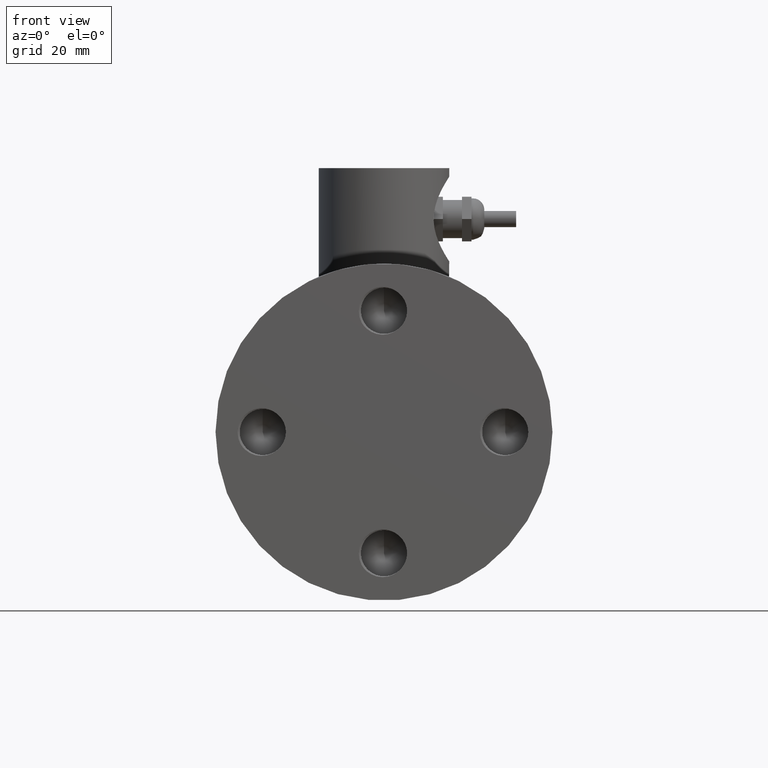
[diagram: clean part render]
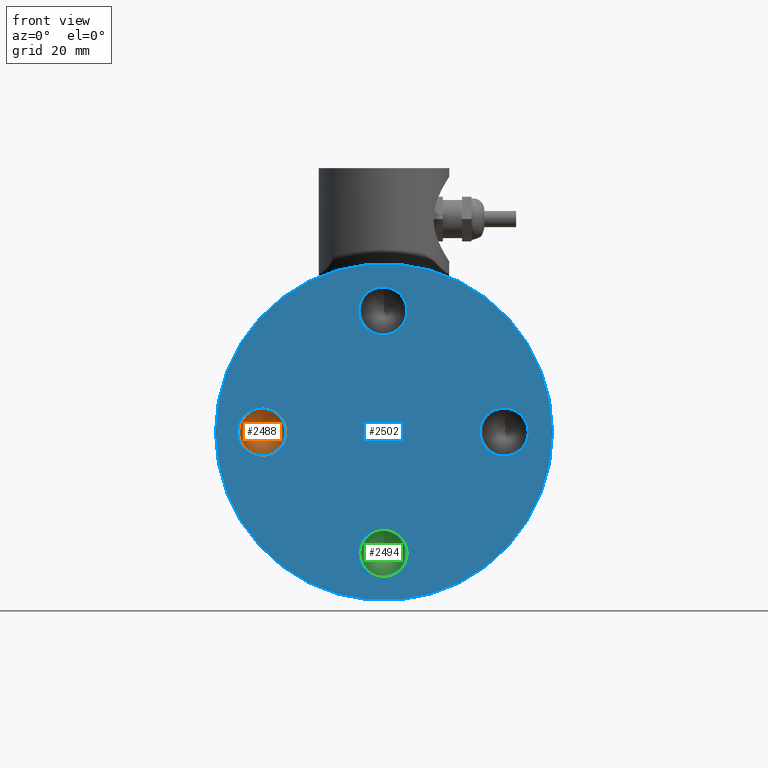
[diagram: same view with three faces highlighted in distinct colors, each labeled with its STEP entity id]
A machine part, front view with three faces highlighted in distinct colors.
Their STEP definitions:

[orange] entity #2488 — the highlighted conical surface has half-angle 59 deg.
#15=CONICAL_SURFACE('',#2678,0.149154182152261,1.02974425867665);
#387=FACE_OUTER_BOUND('',#537,.T.);
#537=EDGE_LOOP('',(#2154,#2155,#2156,#2157,#2158));
#691=LINE('',#12860,#826);
#826=VECTOR('',#3154,0.15625);
#853=CIRCLE('',#2600,0.28575);
#869=CIRCLE('',#2667,0.28575);
#870=CIRCLE('',#2668,0.28575);
#1018=VERTEX_POINT('',#5762);
#1019=VERTEX_POINT('',#5779);
#1111=VERTEX_POINT('',#8947);
#1114=VERTEX_POINT('',#12859);
#1303=EDGE_CURVE('',#1018,#1019,#853,.T.);
#1452=EDGE_CURVE('',#1019,#1111,#869,.T.);
#1453=EDGE_CURVE('',#1111,#1018,#870,.T.);
#1482=EDGE_CURVE('',#1111,#1114,#691,.T.);
#2154=ORIENTED_EDGE('',*,*,#1452,.F.);
#2155=ORIENTED_EDGE('',*,*,#1303,.F.);
#2156=ORIENTED_EDGE('',*,*,#1453,.F.);
#2157=ORIENTED_EDGE('',*,*,#1482,.T.);
#2158=ORIENTED_EDGE('',*,*,#1482,.F.);
#2488=ADVANCED_FACE('',(#387),#15,.F.);
#2600=AXIS2_PLACEMENT_3D('',#5780,#2956,#2957);
#2667=AXIS2_PLACEMENT_3D('',#8948,#3130,#3131);
#2668=AXIS2_PLACEMENT_3D('',#8949,#3132,#3133);
#2678=AXIS2_PLACEMENT_3D('',#12858,#3152,#3153);
#2956=DIRECTION('center_axis',(0.,1.,0.));
#2957=DIRECTION('ref_axis',(0.,0.,-1.));
#3130=DIRECTION('center_axis',(0.,1.,0.));
#3131=DIRECTION('ref_axis',(0.,0.,-1.));
#3132=DIRECTION('center_axis',(0.,1.,0.));
#3133=DIRECTION('ref_axis',(0.,0.,-1.));
#3152=DIRECTION('center_axis',(0.,-1.,0.));
#3153=DIRECTION('ref_axis',(0.,0.,-1.));
#3154=DIRECTION('',(-1.04972719113862E-16,0.515038074910054,-0.857167300702112));
#5762=CARTESIAN_POINT('',(-1.24038540378314,0.511811023622047,-0.119387285466909));
#5779=CARTESIAN_POINT('',(-1.67739481754581,0.511811023622047,-0.224018171601969));
#5780=CARTESIAN_POINT('Origin',(-1.5,0.511811023622047,0.));
#8947=CARTESIAN_POINT('',(-1.5,0.511811023622047,0.28575));
#8948=CARTESIAN_POINT('Origin',(-1.5,0.511811023622047,0.));
#8949=CARTESIAN_POINT('Origin',(-1.5,0.511811023622047,0.));
#12858=CARTESIAN_POINT('Origin',(-1.5,0.593886071290615,0.));
#12859=CARTESIAN_POINT('',(-1.5,0.683506945509173,3.3118881448915E-17));
#12860=CARTESIAN_POINT('',(-1.5,0.593886071290615,0.149154182152261));

[blue] entity #2502 — the highlighted planar face has unit normal (0, -1, 0).
#180=B_SPLINE_CURVE_WITH_KNOTS('',3,(#8270,#8271,#8272,#8273,#8274,#8275,
#8276,#8277,#8278,#8279,#8280,#8281,#8282,#8283,#8284,#8285,#8286,#8287,
#8288,#8289,#8290,#8291,#8292,#8293,#8294,#8295,#8296,#8297,#8298,#8299,
#8300,#8301,#8302,#8303,#8304,#8305,#8306,#8307,#8308,#8309,#8310,#8311,
#8312,#8313,#8314,#8315,#8316,#8317,#8318),.UNSPECIFIED.,.F.,.F.,(4,3,3,
3,3,3,3,3,3,3,3,3,3,3,3,3,4),(0.,0.131455234439723,0.249210794887855,0.283324906608443,
0.320915665940987,0.366966355335987,0.501700202925303,0.557425360773464,
0.602487537902871,0.743538150831428,0.847390857455969,0.902080811763781,
1.01554669579912,1.09231538999366,1.12901257983447,1.26869008211926,1.33118883565285),
 .UNSPECIFIED.);
#183=B_SPLINE_CURVE_WITH_KNOTS('',3,(#8897,#8898,#8899,#8900,#8901,#8902,
#8903,#8904,#8905,#8906,#8907,#8908,#8909,#8910,#8911,#8912,#8913,#8914,
#8915,#8916,#8917,#8918,#8919,#8920,#8921,#8922,#8923,#8924,#8925,#8926,
#8927,#8928,#8929,#8930,#8931,#8932,#8933,#8934,#8935,#8936,#8937,#8938,
#8939,#8940,#8941,#8942,#8943,#8944,#8945),.UNSPECIFIED.,.F.,.F.,(4,3,3,
3,3,3,3,3,3,3,3,3,3,3,3,3,4),(0.,0.140021153660394,0.265699032055225,0.30505061486474,
0.340991207069907,0.391376910450056,0.529758339970417,0.584624942865591,
0.632624920213481,0.773529013853295,0.873675126792938,0.929967988296404,
1.03784250102673,1.1115636059852,1.14571701375706,1.27875396703579,1.33365087088564),
 .UNSPECIFIED.);
#188=B_SPLINE_CURVE_WITH_KNOTS('',3,(#9574,#9575,#9576,#9577,#9578,#9579,
#9580,#9581,#9582,#9583,#9584,#9585,#9586,#9587,#9588,#9589,#9590,#9591,
#9592,#9593,#9594,#9595,#9596,#9597,#9598,#9599,#9600,#9601,#9602,#9603,
#9604,#9605,#9606,#9607,#9608,#9609,#9610,#9611,#9612,#9613,#9614,#9615,
#9616,#9617,#9618,#9619,#9620,#9621,#9622),.UNSPECIFIED.,.F.,.F.,(4,3,3,
3,3,3,3,3,3,3,3,3,3,3,3,3,4),(0.,0.1314552344398,0.24921079488789,0.283324906593819,
0.320915665938263,0.36696635533598,0.501700202925248,0.557425360773874,
0.60248753790785,0.743538150831421,0.847390857454865,0.902080811763561,
1.01554669579901,1.09231538999372,1.12901257983446,1.26869008211945,1.33118883565285),
 .UNSPECIFIED.);
#191=B_SPLINE_CURVE_WITH_KNOTS('',3,(#10201,#10202,#10203,#10204,#10205,
#10206,#10207,#10208,#10209,#10210,#10211,#10212,#10213,#10214,#10215,#10216,
#10217,#10218,#10219,#10220,#10221,#10222,#10223,#10224,#10225,#10226,#10227,
#10228,#10229,#10230,#10231,#10232,#10233,#10234,#10235,#10236,#10237,#10238,
#10239,#10240,#10241,#10242,#10243,#10244,#10245,#10246,#10247,#10248,#10249),
 .UNSPECIFIED.,.F.,.F.,(4,3,3,3,3,3,3,3,3,3,3,3,3,3,3,3,4),(0.,0.140021176536013,
0.265699043493035,0.305050634738558,0.340991210639753,0.391376910450057,
0.529758338694387,0.584624935294868,0.63262491742115,0.773529013853304,
0.873675131119333,0.929967987242875,1.03784250049998,1.11156360662605,1.14571701375708,
1.27875396789023,1.33365087088566),.UNSPECIFIED.);
#196=B_SPLINE_CURVE_WITH_KNOTS('',3,(#10878,#10879,#10880,#10881,#10882,
#10883,#10884,#10885,#10886,#10887,#10888,#10889,#10890,#10891,#10892,#10893,
#10894,#10895,#10896,#10897,#10898,#10899,#10900,#10901,#10902,#10903,#10904,
#10905,#10906,#10907,#10908,#10909,#10910,#10911,#10912,#10913,#10914,#10915,
#10916,#10917,#10918,#10919,#10920,#10921,#10922,#10923,#10924,#10925,#10926),
 .UNSPECIFIED.,.F.,.F.,(4,3,3,3,3,3,3,3,3,3,3,3,3,3,3,3,4),(0.,0.131455294353719,
0.249210824844853,0.283324879920272,0.320915661686771,0.366966355335987,
0.501700175653811,0.55742530543095,0.602487531379013,0.743538150831428,
0.847390858684587,0.902080811596288,1.01554669571538,1.09231539033635,1.12901257983446,
1.26869008216316,1.33118883565284),.UNSPECIFIED.);
#199=B_SPLINE_CURVE_WITH_KNOTS('',3,(#11505,#11506,#11507,#11508,#11509,
#11510,#11511,#11512,#11513,#11514,#11515,#11516,#11517,#11518,#11519,#11520,
#11521,#11522,#11523,#11524,#11525,#11526,#11527,#11528,#11529,#11530,#11531,
#11532,#11533,#11534,#11535,#11536,#11537,#11538,#11539,#11540,#11541,#11542,
#11543,#11544,#11545,#11546,#11547,#11548,#11549,#11550,#11551,#11552,#11553),
 .UNSPECIFIED.,.F.,.F.,(4,3,3,3,3,3,3,3,3,3,3,3,3,3,3,3,4),(0.,0.140021180969915,
0.265699045709982,0.305050638587748,0.340991211330965,0.39137691045005,
0.529758338447899,0.584624933828759,0.632624916883191,0.773529013853281,
0.873675131958545,0.929967987039711,1.03784250039838,1.11156360675026,1.14571701375705,
1.2787539680559,1.33365087088563),.UNSPECIFIED.);
#204=B_SPLINE_CURVE_WITH_KNOTS('',3,(#12182,#12183,#12184,#12185,#12186,
#12187,#12188,#12189,#12190,#12191,#12192,#12193,#12194,#12195,#12196,#12197,
#12198,#12199,#12200,#12201,#12202,#12203,#12204,#12205,#12206,#12207,#12208,
#12209,#12210,#12211,#12212,#12213,#12214,#12215,#12216,#12217,#12218,#12219,
#12220,#12221,#12222,#12223,#12224,#12225,#12226,#12227,#12228,#12229,#12230),
 .UNSPECIFIED.,.F.,.F.,(4,3,3,3,3,3,3,3,3,3,3,3,3,3,3,3,4),(0.,0.131455334651289,
0.249210844993633,0.283324861928847,0.320915658817343,0.366966355335977,
0.501700157308832,0.557425268201818,0.602487526984842,0.743538150831415,
0.847390859514298,0.902080811495062,1.01554669566475,1.09231539057314,1.12901257983445,
1.26869008219163,1.33118883565283),.UNSPECIFIED.);
#207=B_SPLINE_CURVE_WITH_KNOTS('',3,(#12809,#12810,#12811,#12812,#12813,
#12814,#12815,#12816,#12817,#12818,#12819,#12820,#12821,#12822,#12823,#12824,
#12825,#12826,#12827,#12828,#12829,#12830,#12831,#12832,#12833,#12834,#12835,
#12836,#12837,#12838,#12839,#12840,#12841,#12842,#12843,#12844,#12845,#12846,
#12847,#12848,#12849,#12850,#12851,#12852,#12853,#12854,#12855,#12856,#12857),
 .UNSPECIFIED.,.F.,.F.,(4,3,3,3,3,3,3,3,3,3,3,3,3,3,3,3,4),(0.,0.140021153660423,
0.265699032055239,0.305050614874321,0.340991207071469,0.391376910450054,
0.529758339970433,0.584624942865971,0.632624920220179,0.773529013853293,
0.873675126793303,0.929967988303156,1.03784250103011,1.11156360598732,1.14571701375706,
1.27875396703532,1.33365087088565),.UNSPECIFIED.);
#226=FACE_BOUND('',#554,.T.);
#227=FACE_BOUND('',#555,.T.);
#228=FACE_BOUND('',#556,.T.);
#229=FACE_BOUND('',#557,.T.);
#259=PLANE('',#2698);
#401=FACE_OUTER_BOUND('',#553,.T.);
#553=EDGE_LOOP('',(#2215,#2216));
#554=EDGE_LOOP('',(#2217,#2218,#2219,#2220));
#555=EDGE_LOOP('',(#2221,#2222,#2223,#2224));
#556=EDGE_LOOP('',(#2225,#2226,#2227,#2228));
#557=EDGE_LOOP('',(#2229,#2230,#2231,#2232));
#848=CIRCLE('',#2576,0.28575);
#850=CIRCLE('',#2587,0.28575);
#852=CIRCLE('',#2598,0.28575);
#854=CIRCLE('',#2609,0.28575);
#857=CIRCLE('',#2622,0.3125);
#860=CIRCLE('',#2635,0.3125);
#863=CIRCLE('',#2648,0.3125);
#866=CIRCLE('',#2661,0.3125);
#881=CIRCLE('',#2699,2.085);
#882=CIRCLE('',#2700,2.085);
#970=VERTEX_POINT('',#4229);
#971=VERTEX_POINT('',#4255);
#992=VERTEX_POINT('',#4961);
#993=VERTEX_POINT('',#4987);
#1014=VERTEX_POINT('',#5693);
#1015=VERTEX_POINT('',#5719);
#1036=VERTEX_POINT('',#6425);
#1037=VERTEX_POINT('',#6451);
#1054=VERTEX_POINT('',#6761);
#1055=VERTEX_POINT('',#6768);
#1072=VERTEX_POINT('',#7049);
#1073=VERTEX_POINT('',#7056);
#1090=VERTEX_POINT('',#7337);
#1091=VERTEX_POINT('',#7344);
#1108=VERTEX_POINT('',#7625);
#1109=VERTEX_POINT('',#7632);
#1128=VERTEX_POINT('',#13020);
#1129=VERTEX_POINT('',#13021);
#1241=EDGE_CURVE('',#971,#970,#848,.T.);
#1270=EDGE_CURVE('',#993,#992,#850,.T.);
#1299=EDGE_CURVE('',#1015,#1014,#852,.T.);
#1328=EDGE_CURVE('',#1037,#1036,#854,.T.);
#1356=EDGE_CURVE('',#1055,#1054,#857,.T.);
#1384=EDGE_CURVE('',#1073,#1072,#860,.T.);
#1412=EDGE_CURVE('',#1091,#1090,#863,.T.);
#1440=EDGE_CURVE('',#1109,#1108,#866,.T.);
#1448=EDGE_CURVE('',#992,#1109,#180,.T.);
#1451=EDGE_CURVE('',#1108,#993,#183,.T.);
#1458=EDGE_CURVE('',#1036,#1091,#188,.T.);
#1461=EDGE_CURVE('',#1090,#1037,#191,.T.);
#1468=EDGE_CURVE('',#970,#1073,#196,.T.);
#1471=EDGE_CURVE('',#1072,#971,#199,.T.);
#1478=EDGE_CURVE('',#1014,#1055,#204,.T.);
#1481=EDGE_CURVE('',#1054,#1015,#207,.T.);
#1499=EDGE_CURVE('',#1128,#1129,#881,.T.);
#1500=EDGE_CURVE('',#1129,#1128,#882,.T.);
#2215=ORIENTED_EDGE('',*,*,#1499,.T.);
#2216=ORIENTED_EDGE('',*,*,#1500,.T.);
#2217=ORIENTED_EDGE('',*,*,#1451,.T.);
#2218=ORIENTED_EDGE('',*,*,#1270,.T.);
#2219=ORIENTED_EDGE('',*,*,#1448,.T.);
#2220=ORIENTED_EDGE('',*,*,#1440,.T.);
#2221=ORIENTED_EDGE('',*,*,#1461,.T.);
#2222=ORIENTED_EDGE('',*,*,#1328,.T.);
#2223=ORIENTED_EDGE('',*,*,#1458,.T.);
#2224=ORIENTED_EDGE('',*,*,#1412,.T.);
#2225=ORIENTED_EDGE('',*,*,#1471,.T.);
#2226=ORIENTED_EDGE('',*,*,#1241,.T.);
#2227=ORIENTED_EDGE('',*,*,#1468,.T.);
#2228=ORIENTED_EDGE('',*,*,#1384,.T.);
#2229=ORIENTED_EDGE('',*,*,#1481,.T.);
#2230=ORIENTED_EDGE('',*,*,#1299,.T.);
#2231=ORIENTED_EDGE('',*,*,#1478,.T.);
#2232=ORIENTED_EDGE('',*,*,#1356,.T.);
#2502=ADVANCED_FACE('',(#401,#226,#227,#228,#229),#259,.T.);
#2576=AXIS2_PLACEMENT_3D('',#4256,#2889,#2890);
#2587=AXIS2_PLACEMENT_3D('',#4988,#2920,#2921);
#2598=AXIS2_PLACEMENT_3D('',#5720,#2951,#2952);
#2609=AXIS2_PLACEMENT_3D('',#6452,#2982,#2983);
#2622=AXIS2_PLACEMENT_3D('',#6769,#3016,#3017);
#2635=AXIS2_PLACEMENT_3D('',#7057,#3050,#3051);
#2648=AXIS2_PLACEMENT_3D('',#7345,#3084,#3085);
#2661=AXIS2_PLACEMENT_3D('',#7633,#3118,#3119);
#2698=AXIS2_PLACEMENT_3D('',#13019,#3200,#3201);
#2699=AXIS2_PLACEMENT_3D('',#13022,#3202,#3203);
#2700=AXIS2_PLACEMENT_3D('',#13023,#3204,#3205);
#2889=DIRECTION('center_axis',(0.,1.,0.));
#2890=DIRECTION('ref_axis',(0.,0.,-1.));
#2920=DIRECTION('center_axis',(0.,1.,0.));
#2921=DIRECTION('ref_axis',(0.,0.,-1.));
#2951=DIRECTION('center_axis',(0.,1.,0.));
#2952=DIRECTION('ref_axis',(0.,0.,-1.));
#2982=DIRECTION('center_axis',(0.,1.,0.));
#2983=DIRECTION('ref_axis',(0.,0.,-1.));
#3016=DIRECTION('center_axis',(0.,1.,0.));
#3017=DIRECTION('ref_axis',(-4.64370449355026E-14,0.,-1.));
#3050=DIRECTION('center_axis',(0.,1.,0.));
#3051=DIRECTION('ref_axis',(-4.65529926667919E-14,0.,-1.));
#3084=DIRECTION('center_axis',(0.,1.,0.));
#3085=DIRECTION('ref_axis',(-4.64370449355026E-14,0.,-1.));
#3118=DIRECTION('center_axis',(0.,1.,0.));
#3119=DIRECTION('ref_axis',(-4.65523510615096E-14,0.,-1.));
#3200=DIRECTION('center_axis',(0.,-1.,0.));
#3201=DIRECTION('ref_axis',(0.,0.,-1.));
#3202=DIRECTION('center_axis',(0.,-1.,0.));
#3203=DIRECTION('ref_axis',(1.,0.,0.));
#3204=DIRECTION('center_axis',(0.,-1.,0.));
#3205=DIRECTION('ref_axis',(1.,0.,0.));
#4229=CARTESIAN_POINT('',(0.176555515312749,0.,-1.72468024504315));
#4255=CARTESIAN_POINT('',(0.17655551531275,2.18547839493141E-17,-1.27531975495685));
#4256=CARTESIAN_POINT('Origin',(0.,0.,-1.5));
#4961=CARTESIAN_POINT('',(0.176555515312749,0.,1.27531975495685));
#4987=CARTESIAN_POINT('',(0.17655551531275,2.18547839493141E-17,1.72468024504315));
#4988=CARTESIAN_POINT('Origin',(0.,0.,1.5));
#5693=CARTESIAN_POINT('',(1.67655551531275,-4.37095678986282E-17,-0.224680245043149));
#5719=CARTESIAN_POINT('',(1.67655551531275,-2.18547839493141E-17,0.224680245043148));
#5720=CARTESIAN_POINT('Origin',(1.5,0.,0.));
#6425=CARTESIAN_POINT('',(-1.32344448468725,-4.37095678986282E-17,-0.224680245043149));
#6451=CARTESIAN_POINT('',(-1.32344448468725,-2.18547839493141E-17,0.224680245043148));
#6452=CARTESIAN_POINT('Origin',(-1.5,0.,0.));
#6761=CARTESIAN_POINT('',(1.22429078953135,-4.37095678986282E-17,0.147107719929145));
#6768=CARTESIAN_POINT('',(1.22429078953135,-4.37095678986282E-17,-0.147107719929143));
#6769=CARTESIAN_POINT('Origin',(1.5,0.,0.));
#7049=CARTESIAN_POINT('',(-0.275709210468654,0.,-1.35289228007086));
#7056=CARTESIAN_POINT('',(-0.275709210468654,0.,-1.64710771992914));
#7057=CARTESIAN_POINT('Origin',(0.,0.,-1.5));
#7337=CARTESIAN_POINT('',(-1.77570921046865,-4.37095678986282E-17,0.147107719929145));
#7344=CARTESIAN_POINT('',(-1.77570921046865,-4.37095678986282E-17,-0.147107719929143));
#7345=CARTESIAN_POINT('Origin',(-1.5,0.,0.));
#7625=CARTESIAN_POINT('',(-0.275709210468654,0.,1.64710771992914));
#7632=CARTESIAN_POINT('',(-0.275709210468654,0.,1.35289228007086));
#7633=CARTESIAN_POINT('Origin',(0.,0.,1.5));
#8270=CARTESIAN_POINT('Ctrl Pts',(0.17655551531275,-4.37095678986282E-17,
1.27531975495685));
#8271=CARTESIAN_POINT('Ctrl Pts',(0.163580973623908,-4.65980553274481E-17,
1.26395005369434));
#8272=CARTESIAN_POINT('Ctrl Pts',(0.149617797945643,6.63058256810207E-19,
1.25382801497522));
#8273=CARTESIAN_POINT('Ctrl Pts',(0.134879085722938,-1.43114686768087E-17,
1.24501145545311));
#8274=CARTESIAN_POINT('Ctrl Pts',(0.121676375876764,-2.77254176840845E-17,
1.23711371815739));
#8275=CARTESIAN_POINT('Ctrl Pts',(0.107850023528838,-3.52108644691493E-17,
1.23026351895179));
#8276=CARTESIAN_POINT('Ctrl Pts',(0.0935302085568009,-3.77302356024956E-17,
1.22452805002876));
#8277=CARTESIAN_POINT('Ctrl Pts',(0.0893817185329315,-3.84601043915491E-17,
1.2228664688103));
#8278=CARTESIAN_POINT('Ctrl Pts',(0.0851917161412921,-5.07206403210933E-17,
1.22129862436929));
#8279=CARTESIAN_POINT('Ctrl Pts',(0.0809631700471509,-5.11743425413158E-17,
1.21982661652182));
#8280=CARTESIAN_POINT('Ctrl Pts',(0.0763036830919182,-5.16742825986362E-17,
1.21820459296796));
#8281=CARTESIAN_POINT('Ctrl Pts',(0.0716058235002748,-3.87455545475745E-17,
1.216701955766));
#8282=CARTESIAN_POINT('Ctrl Pts',(0.066878837031432,-4.03323208164608E-17,
1.21532170475973));
#8283=CARTESIAN_POINT('Ctrl Pts',(0.0610880259513642,-4.22761943079357E-17,
1.21363082350313));
#8284=CARTESIAN_POINT('Ctrl Pts',(0.0552512886823593,-3.93965774880475E-17,
1.21212281746551));
#8285=CARTESIAN_POINT('Ctrl Pts',(0.049376737965407,-4.16333634234434E-17,
1.21080073973291));
#8286=CARTESIAN_POINT('Ctrl Pts',(0.0321891381411254,-4.90450522772441E-17,
1.20693264086046));
#8287=CARTESIAN_POINT('Ctrl Pts',(0.0146789814239927,-4.61520654795995E-17,
1.20465228605928));
#8288=CARTESIAN_POINT('Ctrl Pts',(-0.00293794082508429,-4.16333634234434E-17,
1.20392900835403));
#8289=CARTESIAN_POINT('Ctrl Pts',(-0.0102242002965791,-3.97644537926902E-17,
1.2036298647831));
#8290=CARTESIAN_POINT('Ctrl Pts',(-0.0175288994701346,-4.46971564260048E-17,
1.2035976785017));
#8291=CARTESIAN_POINT('Ctrl Pts',(-0.0248371165768634,-4.0766001685455E-17,
1.2038328491277));
#8292=CARTESIAN_POINT('Ctrl Pts',(-0.0307469100432348,-3.75870714126247E-17,
1.20402301997357));
#8293=CARTESIAN_POINT('Ctrl Pts',(-0.0366623972247179,-5.89395670657098E-17,
1.20438866713489));
#8294=CARTESIAN_POINT('Ctrl Pts',(-0.0425498754421716,-5.72458747072346E-17,
1.20492744830061));
#8295=CARTESIAN_POINT('Ctrl Pts',(-0.0609784659825397,-5.19443921670261E-17,
1.20661390506989));
#8296=CARTESIAN_POINT('Ctrl Pts',(-0.0791812229267756,-4.74557152676056E-17,
1.20999184883899));
#8297=CARTESIAN_POINT('Ctrl Pts',(-0.0969179681562862,-3.12250225675825E-17,
1.2150338964891));
#8298=CARTESIAN_POINT('Ctrl Pts',(-0.109977174072162,-1.93347445047112E-17,
1.21874625395087));
#8299=CARTESIAN_POINT('Ctrl Pts',(-0.122784248316194,-6.39513428703761E-17,
1.22336198137571));
#8300=CARTESIAN_POINT('Ctrl Pts',(-0.135261170408265,-6.24500451351651E-17,
1.22883210574997));
#8301=CARTESIAN_POINT('Ctrl Pts',(-0.141831652019153,-6.16594455715162E-17,
1.23171273218533));
#8302=CARTESIAN_POINT('Ctrl Pts',(-0.148315489387921,-5.75983340792908E-17,
1.23483362280666));
#8303=CARTESIAN_POINT('Ctrl Pts',(-0.154671431350545,-5.55111512312578E-17,
1.23817284957887));
#8304=CARTESIAN_POINT('Ctrl Pts',(-0.167858178035455,-5.11808487105693E-17,
1.24510078218548));
#8305=CARTESIAN_POINT('Ctrl Pts',(-0.180516120465222,-3.4521389167121E-17,
1.25297449047271));
#8306=CARTESIAN_POINT('Ctrl Pts',(-0.192546214276185,-2.42861286636753E-17,
1.26172337277893));
#8307=CARTESIAN_POINT('Ctrl Pts',(-0.20068552946116,-1.73611609496294E-17,
1.2676426874348));
#8308=CARTESIAN_POINT('Ctrl Pts',(-0.208537351529593,-6.65749097249194E-17,
1.27396311630916));
#8309=CARTESIAN_POINT('Ctrl Pts',(-0.216068117775753,-6.07153216591882E-17,
1.2806681012686));
#8310=CARTESIAN_POINT('Ctrl Pts',(-0.219667996104825,-5.79143046835423E-17,
1.28387323727512));
#8311=CARTESIAN_POINT('Ctrl Pts',(-0.223193283779119,-6.72563301567109E-17,
1.28716545506214));
#8312=CARTESIAN_POINT('Ctrl Pts',(-0.226633680565309,-5.89805981832114E-17,
1.29053608842265));
#8313=CARTESIAN_POINT('Ctrl Pts',(-0.239728580530357,-2.95391512859274E-17,
1.30336545358539));
#8314=CARTESIAN_POINT('Ctrl Pts',(-0.251624688057038,1.26134835335347E-17,
1.31735236597325));
#8315=CARTESIAN_POINT('Ctrl Pts',(-0.262232324630816,2.60208521396521E-17,
1.33229232595961));
#8316=CARTESIAN_POINT('Ctrl Pts',(-0.266978715803009,3.20199845148805E-17,
1.33897721695291));
#8317=CARTESIAN_POINT('Ctrl Pts',(-0.271466696406297,1.04444456111261E-17,
1.34585348002595));
#8318=CARTESIAN_POINT('Ctrl Pts',(-0.27568575458602,8.67361737988404E-18,
1.35290505414377));
#8897=CARTESIAN_POINT('Ctrl Pts',(-0.275709210468654,-2.18547839493141E-17,
1.64710771992914));
#8898=CARTESIAN_POINT('Ctrl Pts',(-0.266275864203105,-2.29073418729956E-17,
1.66287700096742));
#8899=CARTESIAN_POINT('Ctrl Pts',(-0.255470256562313,-1.11213567705076E-18,
1.67772700187069));
#8900=CARTESIAN_POINT('Ctrl Pts',(-0.243460966917558,-7.58941520739853E-18,
1.6915183174938));
#8901=CARTESIAN_POINT('Ctrl Pts',(-0.232681866730722,-1.34031849690644E-17,
1.70389689917574));
#8902=CARTESIAN_POINT('Ctrl Pts',(-0.220931792429833,-3.03950550046538E-17,
1.71542280972895));
#8903=CARTESIAN_POINT('Ctrl Pts',(-0.208308533095277,-3.68628738645072E-17,
1.72596933512041));
#8904=CARTESIAN_POINT('Ctrl Pts',(-0.204356005877486,-3.88880425951636E-17,
1.72927160655111));
#8905=CARTESIAN_POINT('Ctrl Pts',(-0.200317745918145,-6.36331889765479E-18,
1.73247763869671));
#8906=CARTESIAN_POINT('Ctrl Pts',(-0.196196463346251,-4.77048955893622E-18,
1.7355828938079));
#8907=CARTESIAN_POINT('Ctrl Pts',(-0.192432413066604,-3.31572648136391E-18,
1.73841898576853));
#8908=CARTESIAN_POINT('Ctrl Pts',(-0.188605971974693,-3.202299525824E-17,
1.74116578053243));
#8909=CARTESIAN_POINT('Ctrl Pts',(-0.184722268456551,-2.99239799605999E-17,
1.74381904774243));
#8910=CARTESIAN_POINT('Ctrl Pts',(-0.179277641045726,-2.69813361228593E-17,
1.74753870639102));
#8911=CARTESIAN_POINT('Ctrl Pts',(-0.173718949957038,-3.80136687990307E-18,
1.75107574623477));
#8912=CARTESIAN_POINT('Ctrl Pts',(-0.168053186306393,-9.54097911787244E-18,
1.75442291265547));
#8913=CARTESIAN_POINT('Ctrl Pts',(-0.152492493079874,-2.54645289082764E-17,
1.76361571226066));
#8914=CARTESIAN_POINT('Ctrl Pts',(-0.136125283995612,-1.18169710819612E-17,
1.77137993342726));
#8915=CARTESIAN_POINT('Ctrl Pts',(-0.119162368890058,-1.73472347597681E-18,
1.77765012730554));
#8916=CARTESIAN_POINT('Ctrl Pts',(-0.112436773336761,2.26276865577613E-18,
1.78013618514427));
#8917=CARTESIAN_POINT('Ctrl Pts',(-0.105617364662373,-4.36966471764251E-17,
1.78238682666688));
#8918=CARTESIAN_POINT('Ctrl Pts',(-0.0987169570676462,-4.68375338513738E-17,
1.78439571808145));
#8919=CARTESIAN_POINT('Ctrl Pts',(-0.0926801443116079,-4.95853345405812E-17,
1.78615319416536));
#8920=CARTESIAN_POINT('Ctrl Pts',(-0.0865768824277591,-1.87488914855379E-17,
1.78772629776914));
#8921=CARTESIAN_POINT('Ctrl Pts',(-0.080444193071229,-1.90819582357449E-17,
1.78910454494612));
#8922=CARTESIAN_POINT('Ctrl Pts',(-0.0624416630055686,-2.00596767921378E-17,
1.79315039413218));
#8923=CARTESIAN_POINT('Ctrl Pts',(-0.0441438555766282,-2.73749678093805E-17,
1.79553633670934));
#8924=CARTESIAN_POINT('Ctrl Pts',(-0.0257746380305343,-4.16333634234434E-17,
1.79618553069661));
#8925=CARTESIAN_POINT('Ctrl Pts',(-0.0127189085093859,-5.18831863989525E-17,
1.79664693854283));
#8926=CARTESIAN_POINT('Ctrl Pts',(0.000373344010509508,-4.85092794120383E-17,
1.79622969283689));
#8927=CARTESIAN_POINT('Ctrl Pts',(0.0134154011511217,-5.20417042793042E-17,
1.79494400212912));
#8928=CARTESIAN_POINT('Ctrl Pts',(0.0207464367229092,-5.40273060963637E-17,
1.7942213059922));
#8929=CARTESIAN_POINT('Ctrl Pts',(0.028067699027209,-5.95053772602395E-17,
1.79322247134571));
#8930=CARTESIAN_POINT('Ctrl Pts',(0.035328721097838,-5.3776427755281E-17,
1.79195454319504));
#8931=CARTESIAN_POINT('Ctrl Pts',(0.0492430824728594,-4.27979907066334E-17,
1.78952480116777));
#8932=CARTESIAN_POINT('Ctrl Pts',(0.0629564254742591,-9.54375493433575E-18,
1.78610793981913));
#8933=CARTESIAN_POINT('Ctrl Pts',(0.076359164960518,0.,1.78172318050773));
#8934=CARTESIAN_POINT('Ctrl Pts',(0.0855185552501177,6.52217230376637E-18,
1.778726649694));
#8935=CARTESIAN_POINT('Ctrl Pts',(0.0945328099553821,-3.5098142932553E-17,
1.77527763790091));
#8936=CARTESIAN_POINT('Ctrl Pts',(0.103364157226825,-4.33680868994202E-17,
1.77137705326806));
#8937=CARTESIAN_POINT('Ctrl Pts',(0.107455531124522,-4.71993746793578E-17,
1.7695699960137));
#8938=CARTESIAN_POINT('Ctrl Pts',(0.111506195015807,-4.72293317137642E-17,
1.76766644038564));
#8939=CARTESIAN_POINT('Ctrl Pts',(0.115504910925678,-4.85722573273506E-17,
1.76567048056283));
#8940=CARTESIAN_POINT('Ctrl Pts',(0.13108101346953,-5.42648880359682E-17,
1.7578956659538));
#8941=CARTESIAN_POINT('Ctrl Pts',(0.145904370925075,1.38854998693925E-17,
1.74870784147001));
#8942=CARTESIAN_POINT('Ctrl Pts',(0.159809938214506,1.73472347597681E-17,
1.73824961368726));
#8943=CARTESIAN_POINT('Ctrl Pts',(0.165547987468131,1.87756989777699E-17,
1.73393408848258));
#8944=CARTESIAN_POINT('Ctrl Pts',(0.171129376342225,-1.4850663700857E-17,
1.72940176366952));
#8945=CARTESIAN_POINT('Ctrl Pts',(0.176540590823107,-1.56125112837913E-17,
1.72466091378467));
#9574=CARTESIAN_POINT('Ctrl Pts',(-1.32344448468725,-8.74191357972564E-17,
-0.224680245043148));
#9575=CARTESIAN_POINT('Ctrl Pts',(-1.3364190263761,-8.67350203535881E-17,
-0.236049946305662));
#9576=CARTESIAN_POINT('Ctrl Pts',(-1.35038220205437,-9.93723173267091E-17,
-0.246171985024786));
#9577=CARTESIAN_POINT('Ctrl Pts',(-1.36512091427709,-1.0993810029003E-16,
-0.254988544546909));
#9578=CARTESIAN_POINT('Ctrl Pts',(-1.37832362412326,-1.19402764818003E-16,
-0.262886281842619));
#9579=CARTESIAN_POINT('Ctrl Pts',(-1.39214997647118,-9.73624989650116E-17,
-0.269736481048213));
#9580=CARTESIAN_POINT('Ctrl Pts',(-1.40646979144321,-9.15066633577766E-17,
-0.275471949971245));
#9581=CARTESIAN_POINT('Ctrl Pts',(-1.4106182814653,-8.98102115785433E-17,
-0.277133531188995));
#9582=CARTESIAN_POINT('Ctrl Pts',(-1.41480828385512,-9.65120961131432E-17,
-0.278701375629363));
#9583=CARTESIAN_POINT('Ctrl Pts',(-1.41903682994741,-9.8879238130678E-17,
-0.280173383476283));
#9584=CARTESIAN_POINT('Ctrl Pts',(-1.42369631690408,-1.01487621039262E-16,
-0.281795407030749));
#9585=CARTESIAN_POINT('Ctrl Pts',(-1.42839417649721,-7.73182665160084E-17,
-0.283298044233247));
#9586=CARTESIAN_POINT('Ctrl Pts',(-1.43312116296754,-8.02309607639273E-17,
-0.28467829523997));
#9587=CARTESIAN_POINT('Ctrl Pts',(-1.43891197404795,-8.37991668991741E-17,
-0.286369176496693));
#9588=CARTESIAN_POINT('Ctrl Pts',(-1.44474871131729,-8.11439529048203E-17,
-0.287877182534415));
#9589=CARTESIAN_POINT('Ctrl Pts',(-1.45062326203459,-8.06646416329215E-17,
-0.289199260267086));
#9590=CARTESIAN_POINT('Ctrl Pts',(-1.46781086185887,-7.91064685101096E-17,
-0.293067359139537));
#9591=CARTESIAN_POINT('Ctrl Pts',(-1.48532101857599,-1.00141486162417E-16,
-0.295347713940721));
#9592=CARTESIAN_POINT('Ctrl Pts',(-1.50293794082507,-9.36750677027476E-17,
-0.296070991645968));
#9593=CARTESIAN_POINT('Ctrl Pts',(-1.51022420029662,-9.10005935759577E-17,
-0.2963701352169));
#9594=CARTESIAN_POINT('Ctrl Pts',(-1.51752889947024,-9.87825703911555E-17,
-0.296402321498297));
#9595=CARTESIAN_POINT('Ctrl Pts',(-1.52483711657703,-9.8879238130678E-17,
-0.296167150872297));
#9596=CARTESIAN_POINT('Ctrl Pts',(-1.530746910044,-9.89574085472309E-17,
-0.295976980026406));
#9597=CARTESIAN_POINT('Ctrl Pts',(-1.53666239722608,-1.45061460026004E-16,
-0.295611332865025));
#9598=CARTESIAN_POINT('Ctrl Pts',(-1.54254987544412,-1.42247325030098E-16,
-0.295072551699215));
#9599=CARTESIAN_POINT('Ctrl Pts',(-1.56097846598383,-1.33438707886679E-16,
-0.293386094929867));
#9600=CARTESIAN_POINT('Ctrl Pts',(-1.5791812229274,-1.2178501117392E-16,
-0.290008151160832));
#9601=CARTESIAN_POINT('Ctrl Pts',(-1.59691796815628,-1.30104260698261E-16,
-0.284966103510904));
#9602=CARTESIAN_POINT('Ctrl Pts',(-1.60997717407202,-1.36109451639041E-16,
-0.281253746049167));
#9603=CARTESIAN_POINT('Ctrl Pts',(-1.62278424831592,-1.01260968816442E-16,
-0.276638018624393));
#9604=CARTESIAN_POINT('Ctrl Pts',(-1.63526117040787,-1.04083408558608E-16,
-0.271167894250204));
#9605=CARTESIAN_POINT('Ctrl Pts',(-1.64183165201887,-1.05569735738292E-16,
-0.268287267814804));
#9606=CARTESIAN_POINT('Ctrl Pts',(-1.64831548938774,-1.13448157990436E-16,
-0.265166377193432));
#9607=CARTESIAN_POINT('Ctrl Pts',(-1.65467143135047,-1.14491749414469E-16,
-0.261827150421171));
#9608=CARTESIAN_POINT('Ctrl Pts',(-1.66785817803539,-1.16656900674816E-16,
-0.254899217814559));
#9609=CARTESIAN_POINT('Ctrl Pts',(-1.68051612046518,-1.08143351308838E-16,
-0.247025509527325));
#9610=CARTESIAN_POINT('Ctrl Pts',(-1.69254621427615,-1.07552855510562E-16,
-0.238276627221092));
#9611=CARTESIAN_POINT('Ctrl Pts',(-1.70068552946114,-1.07153338142443E-16,
-0.232357312565218));
#9612=CARTESIAN_POINT('Ctrl Pts',(-1.7085373515296,-1.22226196507153E-16,
-0.226036883690838));
#9613=CARTESIAN_POINT('Ctrl Pts',(-1.71606811777577,-1.196959198424E-16,
-0.219331898731384));
#9614=CARTESIAN_POINT('Ctrl Pts',(-1.71966799610484,-1.18486389784737E-16,
-0.216126762724872));
#9615=CARTESIAN_POINT('Ctrl Pts',(-1.72319328377913,-1.20093783365751E-16,
-0.212834544937851));
#9616=CARTESIAN_POINT('Ctrl Pts',(-1.72663368056531,-1.14491749414469E-16,
-0.209463911577346));
#9617=CARTESIAN_POINT('Ctrl Pts',(-1.73972858053037,-9.31691872938675E-17,
-0.196634546414591));
#9618=CARTESIAN_POINT('Ctrl Pts',(-1.75162468805707,-4.27538637398227E-17,
-0.182647634026716));
#9619=CARTESIAN_POINT('Ctrl Pts',(-1.76223232463086,-1.21430643318376E-17,
-0.167707674040324));
#9620=CARTESIAN_POINT('Ctrl Pts',(-1.76697871580304,1.55374994650371E-18,
-0.161022783047046));
#9621=CARTESIAN_POINT('Ctrl Pts',(-1.77146669640631,9.75779792962082E-18,
-0.154146519974027));
#9622=CARTESIAN_POINT('Ctrl Pts',(-1.77568575458602,8.67361737988404E-18,
-0.147094945856225));
#10201=CARTESIAN_POINT('Ctrl Pts',(-1.77570921046865,-6.55643518479423E-17,
0.147107719929144));
#10202=CARTESIAN_POINT('Ctrl Pts',(-1.76627586266195,-6.20018475242356E-17,
0.162877003543687));
#10203=CARTESIAN_POINT('Ctrl Pts',(-1.75547025478661,-8.52983383788636E-17,
0.177727007550359));
#10204=CARTESIAN_POINT('Ctrl Pts',(-1.7434609650546,-9.12898229232795E-17,
0.191518326145623));
#10205=CARTESIAN_POINT('Ctrl Pts',(-1.73268186753146,-9.66675594633984E-17,
0.203896907346387));
#10206=CARTESIAN_POINT('Ctrl Pts',(-1.72093179650997,-7.73311316179905E-17,
0.215422817747654));
#10207=CARTESIAN_POINT('Ctrl Pts',(-1.7083085401491,-7.89299181569447E-17,
0.225969342923683));
#10208=CARTESIAN_POINT('Ctrl Pts',(-1.70435601265537,-7.94305217707162E-17,
0.229271615295393));
#10209=CARTESIAN_POINT('Ctrl Pts',(-1.70031775233759,-9.54392528103083E-17,
0.232477648316982));
#10210=CARTESIAN_POINT('Ctrl Pts',(-1.69619646929817,-9.75781955236954E-17,
0.235582904222649));
#10211=CARTESIAN_POINT('Ctrl Pts',(-1.69243242110594,-9.95317336273811E-17,
0.238418995014351));
#10212=CARTESIAN_POINT('Ctrl Pts',(-1.68860598211291,-9.18238938741508E-17,
0.241165788645969));
#10213=CARTESIAN_POINT('Ctrl Pts',(-1.68472228065361,-9.06393016197882E-17,
0.243819054773657));
#10214=CARTESIAN_POINT('Ctrl Pts',(-1.67927765404498,-8.89786017498135E-17,
0.247538713328769));
#10215=CARTESIAN_POINT('Ctrl Pts',(-1.67371896360915,-5.92451857369684E-17,
0.251075753024993));
#10216=CARTESIAN_POINT('Ctrl Pts',(-1.66805320040259,-6.24500451351651E-17,
0.254422919218181));
#10217=CARTESIAN_POINT('Ctrl Pts',(-1.65249250743675,-7.1171989412297E-17,
0.263615718765043));
#10218=CARTESIAN_POINT('Ctrl Pts',(-1.6361252969408,-7.32743206481288E-17,
0.271379939094206));
#10219=CARTESIAN_POINT('Ctrl Pts',(-1.61916237977712,-7.71951946809679E-17,
0.277650131843202));
#10220=CARTESIAN_POINT('Ctrl Pts',(-1.61243678411739,-7.87497747760747E-17,
0.280136188971902));
#10221=CARTESIAN_POINT('Ctrl Pts',(-1.60561737525454,-9.52936430606248E-17,
0.282386829788167));
#10222=CARTESIAN_POINT('Ctrl Pts',(-1.59871696744959,-9.62771529167128E-17,
0.284395720532777));
#10223=CARTESIAN_POINT('Ctrl Pts',(-1.59268015321609,-9.71375754404024E-17,
0.286153196407161));
#10224=CARTESIAN_POINT('Ctrl Pts',(-1.58657688980778,-5.8515692787745E-17,
0.287726299750437));
#10225=CARTESIAN_POINT('Ctrl Pts',(-1.58044419893664,-5.98479599211998E-17,
0.289104546635746));
#10226=CARTESIAN_POINT('Ctrl Pts',(-1.56244166586022,-6.37588342242744E-17,
0.293150394643024));
#10227=CARTESIAN_POINT('Ctrl Pts',(-1.54414385555296,-7.99468456653485E-17,
0.295536336034857));
#10228=CARTESIAN_POINT('Ctrl Pts',(-1.52577463638874,-7.28583859910259E-17,
0.296185529350353));
#10229=CARTESIAN_POINT('Ctrl Pts',(-1.51271890541223,-6.5969796502453E-17,
0.296646936729898));
#10230=CARTESIAN_POINT('Ctrl Pts',(-1.49962665207299,-1.00608892145622E-16,
0.296229690776085));
#10231=CARTESIAN_POINT('Ctrl Pts',(-1.48658459451159,-1.04083408558608E-16,
0.294943999932231));
#10232=CARTESIAN_POINT('Ctrl Pts',(-1.47925355972061,-1.06036459339554E-16,
0.294221303819109));
#10233=CARTESIAN_POINT('Ctrl Pts',(-1.47193229832077,-5.62367984704126E-17,
0.293222469308432));
#10234=CARTESIAN_POINT('Ctrl Pts',(-1.46467127722101,-5.72458747072346E-17,
0.291954541384273));
#10235=CARTESIAN_POINT('Ctrl Pts',(-1.45075691630872,-5.91795766968368E-17,
0.289524799546985));
#10236=CARTESIAN_POINT('Ctrl Pts',(-1.43704357405508,-7.57482951912569E-17,
0.286107938521897));
#10237=CARTESIAN_POINT('Ctrl Pts',(-1.42364083528075,-6.07153216591882E-17,
0.281723179527915));
#10238=CARTESIAN_POINT('Ctrl Pts',(-1.41448144537734,-5.04418344036139E-17,
0.278726648898274));
#10239=CARTESIAN_POINT('Ctrl Pts',(-1.4054671910449,-7.58032417942865E-17,
0.275277637276589));
#10240=CARTESIAN_POINT('Ctrl Pts',(-1.39663584403005,-7.80625564189563E-17,
0.27137705275711));
#10241=CARTESIAN_POINT('Ctrl Pts',(-1.39254447039279,-7.91092484216708E-17,
0.269569995617802));
#10242=CARTESIAN_POINT('Ctrl Pts',(-1.38849380673433,-6.31246881560028E-17,
0.267666440099077));
#10243=CARTESIAN_POINT('Ctrl Pts',(-1.38449509101816,-6.07153216591882E-17,
0.265670480374945));
#10244=CARTESIAN_POINT('Ctrl Pts',(-1.36891898883653,-5.12532462313916E-17,
0.257895665954463));
#10245=CARTESIAN_POINT('Ctrl Pts',(-1.35409563119221,-2.48054371383037E-17,
0.248707841428083));
#10246=CARTESIAN_POINT('Ctrl Pts',(-1.34019006348407,-3.29597460435593E-17,
0.238249613489055));
#10247=CARTESIAN_POINT('Ctrl Pts',(-1.33445201418383,-3.6324572815815E-17,
0.233934088314761));
#10248=CARTESIAN_POINT('Ctrl Pts',(-1.32887062521698,-1.63010329627887E-18,
0.229401763522212));
#10249=CARTESIAN_POINT('Ctrl Pts',(-1.32345941061888,1.73472347597681E-18,
0.224660913655627));
#10878=CARTESIAN_POINT('Ctrl Pts',(0.17655551531275,-4.37095678986282E-17,
-1.72468024504315));
#10879=CARTESIAN_POINT('Ctrl Pts',(0.163580967710438,-4.65980566439482E-17,
-1.73604995148768));
#10880=CARTESIAN_POINT('Ctrl Pts',(0.149617786717889,-4.59111343533512E-17,
-1.74617199597602));
#10881=CARTESIAN_POINT('Ctrl Pts',(0.134879068996608,-5.5944832100252E-17,
-1.75498856053639));
#10882=CARTESIAN_POINT('Ctrl Pts',(0.121676363601126,-6.49328565596912E-17,
-1.76288629673652));
#10883=CARTESIAN_POINT('Ctrl Pts',(0.107850016441723,-4.68448456649523E-17,
-1.76973649574975));
#10884=CARTESIAN_POINT('Ctrl Pts',(0.0935302065519155,-4.81385764583564E-17,
-1.77547196457057));
#10885=CARTESIAN_POINT('Ctrl Pts',(0.0893817238334142,-4.85133733222903E-17,
-1.77713354342313));
#10886=CARTESIAN_POINT('Ctrl Pts',(0.0851917288550539,-7.72549620274477E-17,
-1.77870138576949));
#10887=CARTESIAN_POINT('Ctrl Pts',(0.0809631902491233,-7.63278329429795E-17,
-1.780173391783));
#10888=CARTESIAN_POINT('Ctrl Pts',(0.0763037010275887,-7.53062156944124E-17,
-1.78179541697733));
#10889=CARTESIAN_POINT('Ctrl Pts',(0.0716058390304668,-6.24304083481153E-17,
-1.78329805561504));
#10890=CARTESIAN_POINT('Ctrl Pts',(0.0668788500465422,-6.15826833971767E-17,
-1.78467830780624));
#10891=CARTESIAN_POINT('Ctrl Pts',(0.0610880388063265,-6.05441755455186E-17,
-1.78636918966154));
#10892=CARTESIAN_POINT('Ctrl Pts',(0.0552513012384217,-4.12644427896513E-17,
-1.78787719611361));
#10893=CARTESIAN_POINT('Ctrl Pts',(0.0493767500432696,-4.33680868994202E-17,
-1.7891992740261));
#10894=CARTESIAN_POINT('Ctrl Pts',(0.0321891538866381,-4.95228694887389E-17,
-1.7930673722846));
#10895=CARTESIAN_POINT('Ctrl Pts',(0.0146789994969743,-4.32022197969234E-17,
-1.7953477254045));
#10896=CARTESIAN_POINT('Ctrl Pts',(-0.00293792099460869,-2.94902990916057E-17,
-1.79607100138103));
#10897=CARTESIAN_POINT('Ctrl Pts',(-0.0102241775436419,-2.38191278964653E-17,
-1.79637014414683));
#10898=CARTESIAN_POINT('Ctrl Pts',(-0.017528873881589,-2.92700361052403E-17,
-1.7964023297756));
#10899=CARTESIAN_POINT('Ctrl Pts',(-0.0248370881997253,-2.77555756156289E-17,
-1.79616715872286));
#10900=CARTESIAN_POINT('Ctrl Pts',(-0.03074688879055,-2.65309044296629E-17,
-1.79597698723009));
#10901=CARTESIAN_POINT('Ctrl Pts',(-0.0366623831587524,-7.15145150212085E-17,
-1.79561133901193));
#10902=CARTESIAN_POINT('Ctrl Pts',(-0.0425498684998977,-7.11236625150491E-17,
-1.79507255642491));
#10903=CARTESIAN_POINT('Ctrl Pts',(-0.0609784622258865,-6.99002434107232E-17,
-1.79338609695577));
#10904=CARTESIAN_POINT('Ctrl Pts',(-0.0791812222262481,-4.24146681376188E-17,
-1.79000815044445));
#10905=CARTESIAN_POINT('Ctrl Pts',(-0.096917969353988,-2.60208521396521E-17,
-1.78496610115709));
#10906=CARTESIAN_POINT('Ctrl Pts',(-0.109977176217974,-1.59253493222098E-17,
-1.78125374261763));
#10907=CARTESIAN_POINT('Ctrl Pts',(-0.122784250800971,-8.59419351323536E-17,
-1.77663801477468));
#10908=CARTESIAN_POINT('Ctrl Pts',(-0.135261172863478,-9.0205620750794E-17,
-1.77116789038037));
#10909=CARTESIAN_POINT('Ctrl Pts',(-0.141831654213336,-9.24509234542391E-17,
-1.76828726404206));
#10910=CARTESIAN_POINT('Ctrl Pts',(-0.148315491224831,-5.36091168072882E-17,
-1.76516637364659));
#10911=CARTESIAN_POINT('Ctrl Pts',(-0.154671432772935,-5.72458747072346E-17,
-1.76182714718847));
#10912=CARTESIAN_POINT('Ctrl Pts',(-0.167858178944196,-6.4791098801882E-17,
-1.75489921505153));
#10913=CARTESIAN_POINT('Ctrl Pts',(-0.180516120586797,-3.90824654917077E-17,
-1.74702550756253));
#10914=CARTESIAN_POINT('Ctrl Pts',(-0.192546213652963,-3.81639164714898E-17,
-1.73827662604131));
#10915=CARTESIAN_POINT('Ctrl Pts',(-0.200685528373228,-3.75424450065206E-17,
-1.73235731188806));
#10916=CARTESIAN_POINT('Ctrl Pts',(-0.208537349993215,-8.36427426253887E-17,
-1.7260368835068));
#10917=CARTESIAN_POINT('Ctrl Pts',(-0.216068115903806,-9.36750677027476E-17,
-1.71933189892631));
#10918=CARTESIAN_POINT('Ctrl Pts',(-0.219667994018854,-9.84707482374784E-17,
-1.71612676314867));
#10919=CARTESIAN_POINT('Ctrl Pts',(-0.223193281507139,-7.10334700024732E-17,
-1.71283454556701));
#10920=CARTESIAN_POINT('Ctrl Pts',(-0.226633678146464,-6.59194920871187E-17,
-1.70946391237639));
#10921=CARTESIAN_POINT('Ctrl Pts',(-0.239728577678909,-4.63738101371172E-17,
-1.69663454773647));
#10922=CARTESIAN_POINT('Ctrl Pts',(-0.251624685312669,-3.80831491907046E-17,
-1.68264763533933));
#10923=CARTESIAN_POINT('Ctrl Pts',(-0.262232322230121,-3.81639164714898E-17,
-1.66770767510049));
#10924=CARTESIAN_POINT('Ctrl Pts',(-0.266978713551264,-3.82000558231224E-17,
-1.66102278400102));
#10925=CARTESIAN_POINT('Ctrl Pts',(-0.271466694351667,4.19226858221728E-18,
-1.65414652077325));
#10926=CARTESIAN_POINT('Ctrl Pts',(-0.275685752750271,5.20417042793042E-18,
-1.64709494647725));
#11505=CARTESIAN_POINT('Ctrl Pts',(-0.275709210468654,-2.18547839493141E-17,
-1.35289228007086));
#11506=CARTESIAN_POINT('Ctrl Pts',(-0.266275862363239,-2.31502401080475E-17,
-1.33712299595696));
#11507=CARTESIAN_POINT('Ctrl Pts',(-0.255470254442441,-4.14481295427679E-17,
-1.32227299134876));
#11508=CARTESIAN_POINT('Ctrl Pts',(-0.243460964693512,-2.3635607360184E-17,
-1.30848167217741));
#11509=CARTESIAN_POINT('Ctrl Pts',(-0.232681867686649,-7.64774225266689E-18,
-1.29610309106991));
#11510=CARTESIAN_POINT('Ctrl Pts',(-0.220931797300769,-3.79762395596268E-17,
-1.2845771806981));
#11511=CARTESIAN_POINT('Ctrl Pts',(-0.208308541516201,-4.59701721133854E-17,
-1.27403065556385));
#11512=CARTESIAN_POINT('Ctrl Pts',(-0.204356013969257,-4.84731902860639E-17,
-1.27072838301));
#11513=CARTESIAN_POINT('Ctrl Pts',(-0.20031775358228,2.81090170923355E-18,
-1.26752234981886));
#11514=CARTESIAN_POINT('Ctrl Pts',(-0.196196470452515,3.90312782094782E-18,
-1.26441709375942));
#11515=CARTESIAN_POINT('Ctrl Pts',(-0.192432422664645,4.90067910539119E-18,
-1.26158100319411));
#11516=CARTESIAN_POINT('Ctrl Pts',(-0.188605984078169,-1.73515301704953E-17,
-1.2588342097818));
#11517=CARTESIAN_POINT('Ctrl Pts',(-0.184722283017659,-1.99493199737333E-17,
-1.25618094386374));
#11518=CARTESIAN_POINT('Ctrl Pts',(-0.179277656564389,-2.35912056035408E-17,
-1.25246128532671));
#11519=CARTESIAN_POINT('Ctrl Pts',(-0.173718966254962,-8.16493930789941E-18,
-1.24892424565905));
#11520=CARTESIAN_POINT('Ctrl Pts',(-0.16805320313433,-1.04083408558608E-17,
-1.24557707950994));
#11521=CARTESIAN_POINT('Ctrl Pts',(-0.152492510218715,-1.64896964877998E-17,
-1.23638427997441));
#11522=CARTESIAN_POINT('Ctrl Pts',(-0.136125299448762,-2.38347015897735E-17,
-1.22862005980764));
#11523=CARTESIAN_POINT('Ctrl Pts',(-0.119162381885786,-2.77555756156289E-17,
-1.22234986727761));
#11524=CARTESIAN_POINT('Ctrl Pts',(-0.112436786205265,-2.93101556761792E-17,
-1.21986381028656));
#11525=CARTESIAN_POINT('Ctrl Pts',(-0.105617377305722,-4.60336243607548E-17,
-1.21761316960724));
#11526=CARTESIAN_POINT('Ctrl Pts',(-0.0987169694598678,-4.59701721133854E-17,
-1.21560427899252));
#11527=CARTESIAN_POINT('Ctrl Pts',(-0.0926801549396577,-4.59146609817514E-17,
-1.21384680315872));
#11528=CARTESIAN_POINT('Ctrl Pts',(-0.0865768912355424,-2.20240494371754E-17,
-1.21227369986592));
#11529=CARTESIAN_POINT('Ctrl Pts',(-0.080444200070505,-2.25514051876985E-17,
-1.21089545303714));
#11530=CARTESIAN_POINT('Ctrl Pts',(-0.0624416664107297,-2.40994596052422E-17,
-1.20684960525858));
#11531=CARTESIAN_POINT('Ctrl Pts',(-0.0441438555459096,-2.73512515105331E-17,
-1.20446366409663));
#11532=CARTESIAN_POINT('Ctrl Pts',(-0.0257746360685704,-3.98986399474666E-17,
-1.20381447091131));
#11533=CARTESIAN_POINT('Ctrl Pts',(-0.0127189048099568,-4.88744740895659E-17,
-1.20335306362217));
#11534=CARTESIAN_POINT('Ctrl Pts',(0.000373348688030805,-2.10508508862699E-17,
-1.20377030962396));
#11535=CARTESIAN_POINT('Ctrl Pts',(0.0134154063308629,-1.90819582357449E-17,
-1.20505600049411));
#11536=CARTESIAN_POINT('Ctrl Pts',(0.0207464409704328,-1.79752294803689E-17,
-1.20577869660257));
#11537=CARTESIAN_POINT('Ctrl Pts',(0.0280677021948683,-3.28946443520666E-17,
-1.20677753108688));
#11538=CARTESIAN_POINT('Ctrl Pts',(0.0353287231063611,-3.29597460435593E-17,
-1.20804545896709));
#11539=CARTESIAN_POINT('Ctrl Pts',(0.0492430839286187,-3.30845010107479E-17,
-1.21047520076743));
#11540=CARTESIAN_POINT('Ctrl Pts',(0.0629564260369615,-2.85159514834235E-17,
-1.21389206172966));
#11541=CARTESIAN_POINT('Ctrl Pts',(0.0763591646729782,-2.60208521396521E-17,
-1.21827682066199));
#11542=CARTESIAN_POINT('Ctrl Pts',(0.0855185545012977,-2.43157090214708E-17,
-1.22127335125586));
#11543=CARTESIAN_POINT('Ctrl Pts',(0.0945328087612675,-3.49110963267863E-17,
-1.22472236284423));
#11544=CARTESIAN_POINT('Ctrl Pts',(0.103364155726212,-3.98986399474666E-17,
-1.22862294734165));
#11545=CARTESIAN_POINT('Ctrl Pts',(0.107455529312932,-4.22092619073177E-17,
-1.23043000445864));
#11546=CARTESIAN_POINT('Ctrl Pts',(0.111506192926225,-2.10568487997202E-17,
-1.23233355995615));
#11547=CARTESIAN_POINT('Ctrl Pts',(0.115504908604814,-1.90819582357449E-17,
-1.23432951966113));
#11548=CARTESIAN_POINT('Ctrl Pts',(0.131081010716117,-1.11584316481279E-17,
-1.24210433404501));
#11549=CARTESIAN_POINT('Ctrl Pts',(0.145904368397077,-2.40359697944279E-17,
-1.25129215857966));
#11550=CARTESIAN_POINT('Ctrl Pts',(0.159809936186498,1.73472347597681E-18,
-1.26175038654904));
#11551=CARTESIAN_POINT('Ctrl Pts',(0.165547985495814,1.23688457901592E-17,
-1.26606591171745));
#11552=CARTESIAN_POINT('Ctrl Pts',(0.171129374480694,-2.06168305757704E-17,
-1.27059823650604));
#11553=CARTESIAN_POINT('Ctrl Pts',(0.176540589101559,-1.73472347597681E-17,
-1.2753390863691));
#12182=CARTESIAN_POINT('Ctrl Pts',(1.67655551531275,-8.74191357972564E-17,
-0.224680245043148));
#12183=CARTESIAN_POINT('Ctrl Pts',(1.6635809637331,-9.06116769681241E-17,
-0.236049954973059));
#12184=CARTESIAN_POINT('Ctrl Pts',(1.64961777916614,-1.12740053889332E-16,
-0.246172003341673));
#12185=CARTESIAN_POINT('Ctrl Pts',(1.63487905774635,-1.02782365951626E-16,
-0.25498857129053));
#12186=CARTESIAN_POINT('Ctrl Pts',(1.62167635534416,-9.38624341128389E-17,
-0.262886306753603));
#12187=CARTESIAN_POINT('Ctrl Pts',(1.60785001167418,-8.08794251838096E-17,
-0.26973650563715));
#12188=CARTESIAN_POINT('Ctrl Pts',(1.59353020520211,-7.84962372879505E-17,
-0.275471974388726));
#12189=CARTESIAN_POINT('Ctrl Pts',(1.58938172740199,-7.7805822784181E-17,
-0.277133551647861));
#12190=CARTESIAN_POINT('Ctrl Pts',(1.58519173741468,-1.12261814987888E-16,
-0.278701392583445));
#12191=CARTESIAN_POINT('Ctrl Pts',(1.58096320385026,-1.15792792021452E-16,
-0.280173397361727));
#12192=CARTESIAN_POINT('Ctrl Pts',(1.57630371310023,-1.19683633746093E-16,
-0.281795423660899));
#12193=CARTESIAN_POINT('Ctrl Pts',(1.57160584948086,-8.65156581894828E-17,
-0.283298063265562));
#12194=CARTESIAN_POINT('Ctrl Pts',(1.56687885880092,-8.8037216405823E-17,
-0.284678316254756));
#12195=CARTESIAN_POINT('Ctrl Pts',(1.56108804745168,-8.9901204973662E-17,
-0.286369198512796));
#12196=CARTESIAN_POINT('Ctrl Pts',(1.55525130968139,-1.17139337547263E-16,
-0.287877205243586));
#12197=CARTESIAN_POINT('Ctrl Pts',(1.5493767581632,-1.13624387676481E-16,
-0.289199283276925));
#12198=CARTESIAN_POINT('Ctrl Pts',(1.5321891644726,-1.02005635031156E-16,
-0.293067381121317));
#12199=CARTESIAN_POINT('Ctrl Pts',(1.51467901164727,-8.04152079774204E-17,
-0.29534773310895));
#12200=CARTESIAN_POINT('Ctrl Pts',(1.49706209233676,-8.5868812060852E-17,
-0.296071007921478));
#12201=CARTESIAN_POINT('Ctrl Pts',(1.48977583775331,-8.8124390749093E-17,
-0.296370150145212));
#12202=CARTESIAN_POINT('Ctrl Pts',(1.48247114332255,-1.03097745348339E-16,
-0.296402335334546));
#12203=CARTESIAN_POINT('Ctrl Pts',(1.47516293088002,-9.97465998686664E-17,
-0.296167163994393));
#12204=CARTESIAN_POINT('Ctrl Pts',(1.46925312549697,-9.7036687184696E-17,
-0.295976992066182));
#12205=CARTESIAN_POINT('Ctrl Pts',(1.46333762629469,-1.06860406143805E-16,
-0.295611343136914));
#12206=CARTESIAN_POINT('Ctrl Pts',(1.4574501361619,-1.05818132034585E-16,
-0.29507255959368));
#12207=CARTESIAN_POINT('Ctrl Pts',(1.4390215402915,-1.02555680988081E-16,
-0.293386098307813));
#12208=CARTESIAN_POINT('Ctrl Pts',(1.42081877823431,-1.18647994112457E-16,
-0.290008149951625));
#12209=CARTESIAN_POINT('Ctrl Pts',(1.40308202982953,-1.33573707650214E-16,
-0.284966099563507));
#12210=CARTESIAN_POINT('Ctrl Pts',(1.39002282232779,-1.48272861884117E-16,
-0.281253740299566));
#12211=CARTESIAN_POINT('Ctrl Pts',(1.37721574751727,-9.91068673821642E-17,
-0.276638012176272));
#12212=CARTESIAN_POINT('Ctrl Pts',(1.36473882547539,-8.67361737988404E-17,
-0.271167887769556));
#12213=CARTESIAN_POINT('Ctrl Pts',(1.35816834430073,-8.02216336715665E-17,
-0.268287261496768));
#12214=CARTESIAN_POINT('Ctrl Pts',(1.35168450752927,-1.09088644119251E-16,
-0.265166371253469));
#12215=CARTESIAN_POINT('Ctrl Pts',(1.34532856625978,-1.12757025938492E-16,
-0.261827145006818));
#12216=CARTESIAN_POINT('Ctrl Pts',(1.33214182043619,-1.20367860680836E-16,
-0.254899213187602));
#12217=CARTESIAN_POINT('Ctrl Pts',(1.31948387932532,-1.04275145360913E-16,
-0.247025506237535));
#12218=CARTESIAN_POINT('Ctrl Pts',(1.30745378676209,-9.19403442267708E-17,
-0.238276625246203));
#12219=CARTESIAN_POINT('Ctrl Pts',(1.29931447235526,-8.359487023737E-17,
-0.232357311431938));
#12220=CARTESIAN_POINT('Ctrl Pts',(1.29146265103767,-1.16895816708202E-16,
-0.226036883383155));
#12221=CARTESIAN_POINT('Ctrl Pts',(1.28393188535336,-1.17961196366423E-16,
-0.219331899058108));
#12222=CARTESIAN_POINT('Ctrl Pts',(1.28033200738318,-1.18470472172135E-16,
-0.216126763435261));
#12223=CARTESIAN_POINT('Ctrl Pts',(1.27680672002085,-1.02666982461201E-16,
-0.212834545992559));
#12224=CARTESIAN_POINT('Ctrl Pts',(1.27336632348106,-1.02348685082632E-16,
-0.209463912917003));
#12225=CARTESIAN_POINT('Ctrl Pts',(1.26027142424032,-9.96447542370355E-17,
-0.196634548629623));
#12226=CARTESIAN_POINT('Ctrl Pts',(1.24837531653437,-6.52174094175124E-17,
-0.182647636226173));
#12227=CARTESIAN_POINT('Ctrl Pts',(1.23776767938521,-4.16333634234434E-17,
-0.167707675817051));
#12228=CARTESIAN_POINT('Ctrl Pts',(1.23302128796353,-3.10806727515305E-17,
-0.161022784645802));
#12229=CARTESIAN_POINT('Ctrl Pts',(1.22853330703012,1.25767019528292E-17,
-0.154146521313491));
#12230=CARTESIAN_POINT('Ctrl Pts',(1.22431424848384,1.04083408558608E-17,
-0.147094946897121));
#12809=CARTESIAN_POINT('Ctrl Pts',(1.22429078953135,-6.55643518479423E-17,
0.147107719929144));
#12810=CARTESIAN_POINT('Ctrl Pts',(1.2337241357969,-6.76694676953058E-17,
0.162877000967421));
#12811=CARTESIAN_POINT('Ctrl Pts',(1.24452974343769,-6.36375601054311E-17,
0.1777270018707));
#12812=CARTESIAN_POINT('Ctrl Pts',(1.25653903308245,-6.8738417735581E-17,
0.191518317493806));
#12813=CARTESIAN_POINT('Ctrl Pts',(1.26731813326928,-7.33167614228923E-17,
0.203896899175748));
#12814=CARTESIAN_POINT('Ctrl Pts',(1.27906820757017,-6.6967476016109E-17,
0.215422809728958));
#12815=CARTESIAN_POINT('Ctrl Pts',(1.29169146690473,-6.0281640790194E-17,
0.225969335120412));
#12816=CARTESIAN_POINT('Ctrl Pts',(1.29564399412348,-5.81882079445121E-17,
0.229271606551917));
#12817=CARTESIAN_POINT('Ctrl Pts',(1.29968225408382,-7.16751413391187E-17,
0.232477638698275));
#12818=CARTESIAN_POINT('Ctrl Pts',(1.30380353665676,-7.28583859910259E-17,
0.235582893810167));
#12819=CARTESIAN_POINT('Ctrl Pts',(1.3075675869356,-7.39390671341242E-17,
0.238418985770119));
#12820=CARTESIAN_POINT('Ctrl Pts',(1.31139402802667,-8.52300559492882E-17,
0.241165780533372));
#12821=CARTESIAN_POINT('Ctrl Pts',(1.31527773154395,-8.50014503228635E-17,
0.243819047742776));
#12822=CARTESIAN_POINT('Ctrl Pts',(1.32072235895462,-8.46809643603473E-17,
0.247538706391243));
#12823=CARTESIAN_POINT('Ctrl Pts',(1.32628105004314,-8.14178345601816E-17,
0.251075746234869));
#12824=CARTESIAN_POINT('Ctrl Pts',(1.33194681369361,-8.50014503228635E-17,
0.254422912655473));
#12825=CARTESIAN_POINT('Ctrl Pts',(1.34750750692013,-9.59510596668376E-17,
0.263615712260658));
#12826=CARTESIAN_POINT('Ctrl Pts',(1.36387471600439,-1.05901951508353E-16,
0.271379933427265));
#12827=CARTESIAN_POINT('Ctrl Pts',(1.38083763110995,-8.93382590128056E-17,
0.277650127305538));
#12828=CARTESIAN_POINT('Ctrl Pts',(1.38756322666329,-8.27709505105964E-17,
0.280136185144293));
#12829=CARTESIAN_POINT('Ctrl Pts',(1.39438263533773,-8.17642998327929E-17,
0.282386826666917));
#12830=CARTESIAN_POINT('Ctrl Pts',(1.4012830429325,-7.97972798949331E-17,
0.284395718081496));
#12831=CARTESIAN_POINT('Ctrl Pts',(1.40731985568933,-7.80764350186373E-17,
0.286153194165634));
#12832=CARTESIAN_POINT('Ctrl Pts',(1.41342311757399,-5.9847961558041E-17,
0.287726297769588));
#12833=CARTESIAN_POINT('Ctrl Pts',(1.41955580693134,-6.33174068731535E-17,
0.289104544946696));
#12834=CARTESIAN_POINT('Ctrl Pts',(1.43755833699617,-7.35019751684283E-17,
0.293150394132409));
#12835=CARTESIAN_POINT('Ctrl Pts',(1.45585614442425,-8.95981814607676E-17,
0.295536336709369));
#12836=CARTESIAN_POINT('Ctrl Pts',(1.47422536196947,-8.15320033709099E-17,
0.296185530696615));
#12837=CARTESIAN_POINT('Ctrl Pts',(1.48728109149066,-7.5741142932748E-17,
0.296646938542833));
#12838=CARTESIAN_POINT('Ctrl Pts',(1.50037334401061,-6.90490913791979E-17,
0.296229692836884));
#12839=CARTESIAN_POINT('Ctrl Pts',(1.51341540115127,-6.41847686111419E-17,
0.294944002129104));
#12840=CARTESIAN_POINT('Ctrl Pts',(1.52074643672389,-6.14504972561924E-17,
0.294221305992101));
#12841=CARTESIAN_POINT('Ctrl Pts',(1.52806769902901,-1.01571430181762E-16,
0.293222471345464));
#12842=CARTESIAN_POINT('Ctrl Pts',(1.53532872110045,-9.71445146547012E-17,
0.291954543194586));
#12843=CARTESIAN_POINT('Ctrl Pts',(1.54924308247501,-8.8661176935557E-17,
0.289524801167262));
#12844=CARTESIAN_POINT('Ctrl Pts',(1.56295642547596,-8.47432415465652E-17,
0.286107939818639));
#12845=CARTESIAN_POINT('Ctrl Pts',(1.57635916496178,-9.54097911787244E-17,
0.281723180507321));
#12846=CARTESIAN_POINT('Ctrl Pts',(1.58551855525121,-1.02699277871045E-16,
0.278726649693597));
#12847=CARTESIAN_POINT('Ctrl Pts',(1.59453280995631,-7.18779287166202E-17,
0.275277637900537));
#12848=CARTESIAN_POINT('Ctrl Pts',(1.60336415722759,-7.28583859910259E-17,
0.271377053267725));
#12849=CARTESIAN_POINT('Ctrl Pts',(1.60745553112503,-7.33126108308872E-17,
0.269569996013468));
#12850=CARTESIAN_POINT('Ctrl Pts',(1.61150619501606,-6.45236802736623E-17,
0.267666440385517));
#12851=CARTESIAN_POINT('Ctrl Pts',(1.61550491092568,-6.24500451351651E-17,
0.265670480562834));
#12852=CARTESIAN_POINT('Ctrl Pts',(1.63108101346948,-5.47573009343574E-17,
0.257895665953828));
#12853=CARTESIAN_POINT('Ctrl Pts',(1.64590437092497,-7.21775105183917E-17,
0.248707841470073));
#12854=CARTESIAN_POINT('Ctrl Pts',(1.65980993821436,-6.07153216591882E-17,
0.238249613687376));
#12855=CARTESIAN_POINT('Ctrl Pts',(1.66554798746804,-5.59855179150977E-17,
0.233934088482656));
#12856=CARTESIAN_POINT('Ctrl Pts',(1.67112937634218,-5.61996507774579E-19,
0.229401763669563));
#12857=CARTESIAN_POINT('Ctrl Pts',(1.67654059082311,3.46944695195361E-18,
0.22466091378467));
#13019=CARTESIAN_POINT('Origin',(0.,0.,0.));
#13020=CARTESIAN_POINT('',(2.085,0.,0.));
#13021=CARTESIAN_POINT('',(-2.085,0.,-2.55338857622223E-16));
#13022=CARTESIAN_POINT('Origin',(0.,0.,0.));
#13023=CARTESIAN_POINT('Origin',(0.,0.,0.));

[green] entity #2494 — the highlighted conical surface has half-angle 59 deg.
#18=CONICAL_SURFACE('',#2684,0.149154182152261,1.02974425867665);
#393=FACE_OUTER_BOUND('',#543,.T.);
#543=EDGE_LOOP('',(#2181,#2182,#2183,#2184,#2185));
#694=LINE('',#12872,#829);
#829=VECTOR('',#3169,0.15625);
#847=CIRCLE('',#2567,0.28575);
#871=CIRCLE('',#2671,0.28575);
#872=CIRCLE('',#2672,0.28575);
#952=VERTEX_POINT('',#3566);
#953=VERTEX_POINT('',#3583);
#1112=VERTEX_POINT('',#10251);
#1117=VERTEX_POINT('',#12871);
#1216=EDGE_CURVE('',#952,#953,#847,.T.);
#1462=EDGE_CURVE('',#953,#1112,#871,.T.);
#1463=EDGE_CURVE('',#1112,#952,#872,.T.);
#1485=EDGE_CURVE('',#1112,#1117,#694,.T.);
#2181=ORIENTED_EDGE('',*,*,#1462,.F.);
#2182=ORIENTED_EDGE('',*,*,#1216,.F.);
#2183=ORIENTED_EDGE('',*,*,#1463,.F.);
#2184=ORIENTED_EDGE('',*,*,#1485,.T.);
#2185=ORIENTED_EDGE('',*,*,#1485,.F.);
#2494=ADVANCED_FACE('',(#393),#18,.F.);
#2567=AXIS2_PLACEMENT_3D('',#3584,#2863,#2864);
#2671=AXIS2_PLACEMENT_3D('',#10252,#3138,#3139);
#2672=AXIS2_PLACEMENT_3D('',#10253,#3140,#3141);
#2684=AXIS2_PLACEMENT_3D('',#12870,#3167,#3168);
#2863=DIRECTION('center_axis',(0.,1.,0.));
#2864=DIRECTION('ref_axis',(0.,0.,-1.));
#3138=DIRECTION('center_axis',(0.,1.,0.));
#3139=DIRECTION('ref_axis',(0.,0.,-1.));
#3140=DIRECTION('center_axis',(0.,1.,0.));
#3141=DIRECTION('ref_axis',(0.,0.,-1.));
#3167=DIRECTION('center_axis',(0.,-1.,0.));
#3168=DIRECTION('ref_axis',(0.,0.,-1.));
#3169=DIRECTION('',(-1.04972719113862E-16,0.515038074910054,-0.857167300702112));
#3566=CARTESIAN_POINT('',(0.259614596216859,0.511811023622047,-1.61938728546691));
#3583=CARTESIAN_POINT('',(-0.177394817545809,0.511811023622047,-1.72401817160197));
#3584=CARTESIAN_POINT('Origin',(0.,0.511811023622047,-1.5));
#10251=CARTESIAN_POINT('',(3.49942822856356E-17,0.511811023622047,-1.21425));
#10252=CARTESIAN_POINT('Origin',(0.,0.511811023622047,-1.5));
#10253=CARTESIAN_POINT('Origin',(0.,0.511811023622047,-1.5));
#12870=CARTESIAN_POINT('Origin',(0.,0.593886071290615,-1.5));
#12871=CARTESIAN_POINT('',(0.,0.683506945509173,-1.5));
#12872=CARTESIAN_POINT('',(1.82661191752208E-17,0.593886071290615,-1.35084581784774));